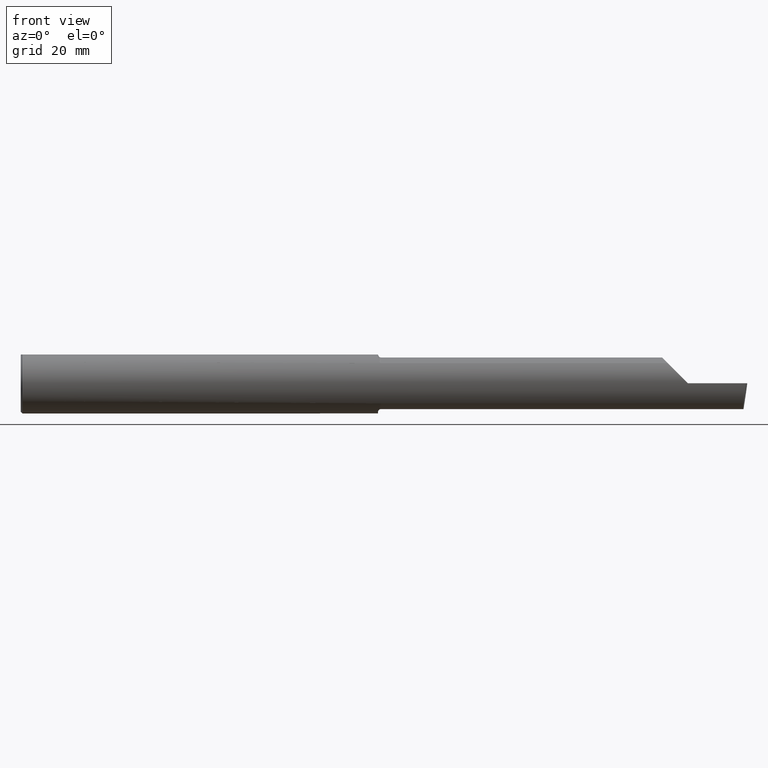
[diagram: clean part render]
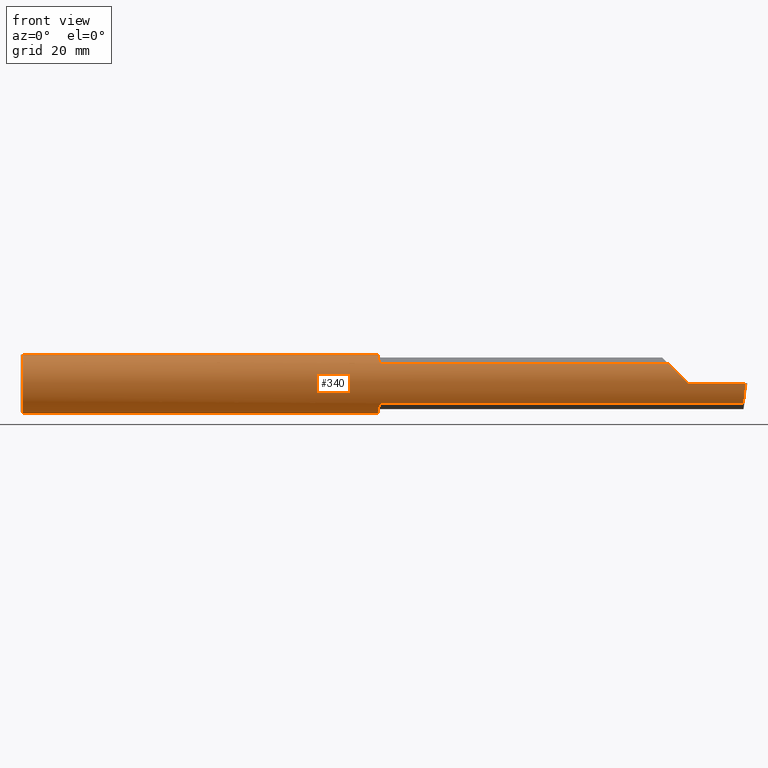
[diagram: same view with one face highlighted and labeled with its STEP entity id]
A machine part, front view. The second image highlights one B-rep face of the part: STEP entity #340.
In plain terms, the highlighted cylindrical surface (edge-blend (fillet) strip) has radius 6.3462 mm, axis along (-1, -0, -0).
Its self-contained STEP definition (entity closure, byte-faithful):
#7 = CIRCLE ( 'NONE', #148, 0.2498499999999999888 ) ;
#14 = VERTEX_POINT ( 'NONE', #48 ) ;
#23 = CARTESIAN_POINT ( 'NONE',  ( 4.678149108241350816E-32, -0.2498499999999999888, 4.235963549344508711E-16 ) ) ;
#43 = CARTESIAN_POINT ( 'NONE',  ( 2.949999999999990852, -0.1016924291521900947, -0.2293274111511736102 ) ) ;
#46 = ORIENTED_EDGE ( 'NONE', *, *, #327, .F. ) ;
#48 = CARTESIAN_POINT ( 'NONE',  ( 2.975000000000000533, -0.1868028301886801024, -0.1659208399614078011 ) ) ;
#49 = AXIS2_PLACEMENT_3D ( 'NONE', #90, #498, #616 ) ;
#51 = CARTESIAN_POINT ( 'NONE',  ( 5.390325100969867833, -0.2278791102234771215, 0.1196748990301337162 ) ) ;
#63 = CARTESIAN_POINT ( 'NONE',  ( 0.01499999999999999771, 0.0000000000000000000, 0.0000000000000000000 ) ) ;
#79 = VERTEX_POINT ( 'NONE', #454 ) ;
#80 = CARTESIAN_POINT ( 'NONE',  ( 2.975000000000000533, -0.1868028301886802411, 0.1659208399614077178 ) ) ;
#84 = CARTESIAN_POINT ( 'NONE',  ( 2.950000000000000622, 0.0000000000000000000, 0.0000000000000000000 ) ) ;
#90 = CARTESIAN_POINT ( 'NONE',  ( 2.950000000000000622, 0.0000000000000000000, 0.0000000000000000000 ) ) ;
#95 = CARTESIAN_POINT ( 'NONE',  ( 5.344079160038589293, -0.1868028301886780762, 0.1659208399614099383 ) ) ;
#108 = CARTESIAN_POINT ( 'NONE',  ( 2.965875558094659858, -0.1799506819598047369, -0.1733486322212172137 ) ) ;
#110 = EDGE_CURVE ( 'NONE', #614, #451, #271, .T. ) ;
#112 = LINE ( 'NONE', #628, #709 ) ;
#115 = CARTESIAN_POINT ( 'NONE',  ( 5.968492717492763333, -0.1868028301886794917, -0.1659208399614086338 ) ) ;
#120 = VERTEX_POINT ( 'NONE', #765 ) ;
#123 = ORIENTED_EDGE ( 'NONE', *, *, #414, .F. ) ;
#125 = ORIENTED_EDGE ( 'NONE', *, *, #204, .F. ) ;
#127 = CARTESIAN_POINT ( 'NONE',  ( 0.01499999999999999771, 0.0000000000000000000, -0.2498499999999999888 ) ) ;
#130 = CARTESIAN_POINT ( 'NONE',  ( 2.975000000000000533, -0.1868028301886802411, 0.1659208399614077178 ) ) ;
#131 = CARTESIAN_POINT ( 'NONE',  ( 2.957343635746628507, -0.1582230848692707248, 0.1936715022401941932 ) ) ;
#137 = CARTESIAN_POINT ( 'NONE',  ( 2.950000000000000622, -0.07650098038590467941, 0.2378500000000000059 ) ) ;
#138 = CARTESIAN_POINT ( 'NONE',  ( 2.955553274544309161, -0.1495649063853958793, 0.2004446339470375427 ) ) ;
#140 = CARTESIAN_POINT ( 'NONE',  ( 5.973097331270539989, -0.2278791102234774546, -0.1196748990301325505 ) ) ;
#146 = VECTOR ( 'NONE', #237, 39.37007874015748143 ) ;
#148 = AXIS2_PLACEMENT_3D ( 'NONE', #767, #411, #247 ) ;
#149 = AXIS2_PLACEMENT_3D ( 'NONE', #63, #476, #189 ) ;
#155 = DIRECTION ( 'NONE',  ( 0.0000000000000000000, 0.0000000000000000000, -1.000000000000000000 ) ) ;
#163 = EDGE_CURVE ( 'NONE', #415, #652, #466, .T. ) ;
#171 = CARTESIAN_POINT ( 'NONE',  ( 2.970138573936400128, -0.1849738682364337750, -0.1679602226613244043 ) ) ;
#186 = CARTESIAN_POINT ( 'NONE',  ( 2.969285582744839669, -0.1841881072713816569, -0.1688230283719342195 ) ) ;
#189 = DIRECTION ( 'NONE',  ( 0.0000000000000000000, 0.0000000000000000000, 1.000000000000000000 ) ) ;
#190 = CARTESIAN_POINT ( 'NONE',  ( 2.969290397284159777, -0.1841927918507058615, 0.1688179232533547902 ) ) ;
#191 = CARTESIAN_POINT ( 'NONE',  ( 0.01499999999999999771, 0.07650098038587500870, 0.2378499999999999226 ) ) ;
#196 = CARTESIAN_POINT ( 'NONE',  ( 2.962758562425230835, -0.1743135686468876011, 0.1790760091940033216 ) ) ;
#199 = VECTOR ( 'NONE', #212, 39.37007874015748143 ) ;
#200 = VERTEX_POINT ( 'NONE', #397 ) ;
#204 = EDGE_CURVE ( 'NONE', #430, #451, #7, .T. ) ;
#212 = DIRECTION ( 'NONE',  ( -1.000000000000000000, -0.0000000000000000000, -0.0000000000000000000 ) ) ;
#216 = ORIENTED_EDGE ( 'NONE', *, *, #337, .F. ) ;
#220 = AXIS2_PLACEMENT_3D ( 'NONE', #375, #318, #436 ) ;
#234 = DIRECTION ( 'NONE',  ( 1.000000000000000000, 0.0000000000000000000, 0.0000000000000000000 ) ) ;
#237 = DIRECTION ( 'NONE',  ( -1.000000000000000000, -0.0000000000000000000, -0.0000000000000000000 ) ) ;
#243 = CARTESIAN_POINT ( 'NONE',  ( 2.952700302592144332, -0.1312404656039937167, 0.2128935242986057796 ) ) ;
#245 = CARTESIAN_POINT ( 'NONE',  ( 2.950000000000000622, -0.08036415094339764698, -0.2365726648265745469 ) ) ;
#246 = CARTESIAN_POINT ( 'NONE',  ( 0.01499999999998188026, -0.07650098038590467941, 0.2378500000000000059 ) ) ;
#247 = DIRECTION ( 'NONE',  ( 0.0000000000000000000, 0.0000000000000000000, 1.000000000000000000 ) ) ;
#250 = CARTESIAN_POINT ( 'NONE',  ( 2.967016733372314530, -0.1817333077058777557, -0.1714754572696055857 ) ) ;
#255 = CARTESIAN_POINT ( 'NONE',  ( 2.973548866468136875, -0.1868028301907328492, 0.1659208399590970107 ) ) ;
#263 = DIRECTION ( 'NONE',  ( -1.000000000000000000, -0.0000000000000000000, -0.0000000000000000000 ) ) ;
#267 = EDGE_CURVE ( 'NONE', #695, #79, #609, .T. ) ;
#270 = ORIENTED_EDGE ( 'NONE', *, *, #163, .T. ) ;
#271 = LINE ( 'NONE', #296, #146 ) ;
#280 = ORIENTED_EDGE ( 'NONE', *, *, #346, .F. ) ;
#283 = CIRCLE ( 'NONE', #149, 0.2498499999999999888 ) ;
#284 = CARTESIAN_POINT ( 'NONE',  ( 2.973547768521294987, -0.1868028301886801579, -0.1659208399614078844 ) ) ;
#287 = VERTEX_POINT ( 'NONE', #480 ) ;
#291 = CARTESIAN_POINT ( 'NONE',  ( 5.510000000000000675, -0.2498499999999999888, -1.849216666712503932E-16 ) ) ;
#296 = CARTESIAN_POINT ( 'NONE',  ( 0.0000000000000000000, -0.07650098038587496707, 0.2378499999999999226 ) ) ;
#299 = CARTESIAN_POINT ( 'NONE',  ( 2.961285743882608124, -0.1704402150608125832, -0.1827701868778688066 ) ) ;
#300 = CARTESIAN_POINT ( 'NONE',  ( 2.951680550596498698, -0.1214972057705740599, 0.2186080375779515528 ) ) ;
#308 = ORIENTED_EDGE ( 'NONE', *, *, #267, .T. ) ;
#311 = CARTESIAN_POINT ( 'NONE',  ( 2.970144309637440916, -0.1849788583324340763, 0.1679547276881058482 ) ) ;
#314 = ORIENTED_EDGE ( 'NONE', *, *, #694, .T. ) ;
#315 = B_SPLINE_CURVE_WITH_KNOTS ( 'NONE', 3,
 ( #439, #284, #354, #171, #186, #250, #108, #650, #299, #646, #590, #766, #43, #245 ),
 .UNSPECIFIED., .F., .F.,
 ( 4, 2, 2, 2, 2, 2, 4 ),
 ( 1.967619685358722855E-07, 0.0001090840123077841469, 0.0002179712626470324229, 0.0004357457633255543725, 0.0008712947646826149683, 0.001742392767396734642, 0.003484588772824973122 ),
 .UNSPECIFIED. ) ;
#318 = DIRECTION ( 'NONE',  ( -1.000000000000000000, -0.0000000000000000000, -0.0000000000000000000 ) ) ;
#327 = EDGE_CURVE ( 'NONE', #120, #79, #747, .T. ) ;
#329 = ORIENTED_EDGE ( 'NONE', *, *, #737, .F. ) ;
#337 = EDGE_CURVE ( 'NONE', #614, #200, #420, .T. ) ;
#340 = ADVANCED_FACE ( 'NONE', ( #573 ), #557, .T. ) ;
#346 = EDGE_CURVE ( 'NONE', #200, #392, #432, .T. ) ;
#352 = CARTESIAN_POINT ( 'NONE',  ( 5.987221270274238449, -0.2498499999999999888, -2.376254313274097985E-16 ) ) ;
#354 = CARTESIAN_POINT ( 'NONE',  ( 2.972232603162240139, -0.1862758070845882408, -0.1665151405181416744 ) ) ;
#357 =( BOUNDED_CURVE ( )  B_SPLINE_CURVE ( 3, ( #691, #140, #486, #352 ),
 .UNSPECIFIED., .F., .F. ) 
 B_SPLINE_CURVE_WITH_KNOTS ( ( 4, 4 ),
 ( 0.6344818218798808918, 1.360746882514761280 ),
 .UNSPECIFIED. ) 
 CURVE ( )  GEOMETRIC_REPRESENTATION_ITEM ( )  RATIONAL_B_SPLINE_CURVE ( ( 1.000000000000000000, 0.9565258159410998662, 0.9565258159410998662, 1.000000000000000000 ) ) 
 REPRESENTATION_ITEM ( '' )  );
#375 = CARTESIAN_POINT ( 'NONE',  ( 0.0000000000000000000, 0.0000000000000000000, 0.0000000000000000000 ) ) ;
#377 = CARTESIAN_POINT ( 'NONE',  ( 2.950000000000000622, -0.08036415094339764698, 0.2365726648265745469 ) ) ;
#392 = VERTEX_POINT ( 'NONE', #130 ) ;
#397 = CARTESIAN_POINT ( 'NONE',  ( 2.950000000000000622, -0.08036415094339764698, 0.2365726648265745469 ) ) ;
#411 = DIRECTION ( 'NONE',  ( -1.000000000000000000, -0.0000000000000000000, -0.0000000000000000000 ) ) ;
#414 = EDGE_CURVE ( 'NONE', #695, #430, #283, .T. ) ;
#415 = VERTEX_POINT ( 'NONE', #619 ) ;
#420 = CIRCLE ( 'NONE', #49, 0.2498499999999999888 ) ;
#430 = VERTEX_POINT ( 'NONE', #127 ) ;
#432 = B_SPLINE_CURVE_WITH_KNOTS ( 'NONE', 3,
 ( #377, #731, #648, #300, #243, #138, #131, #539, #196, #592, #536, #190, #311, #603, #255, #80 ),
 .UNSPECIFIED., .F., .F.,
 ( 4, 2, 2, 2, 2, 2, 2, 4 ),
 ( 0.0001034694911878423069, 0.0009591263138367670449, 0.001814783136485691823, 0.002670439959134616494, 0.003098268370459083924, 0.003312182576121317640, 0.003419139678952433630, 0.003526096781783549620 ),
 .UNSPECIFIED. ) ;
#436 = DIRECTION ( 'NONE',  ( 0.0000000000000000000, 0.0000000000000000000, 1.000000000000000000 ) ) ;
#439 = CARTESIAN_POINT ( 'NONE',  ( 2.975000000000000533, -0.1868028301886801024, -0.1659208399614078011 ) ) ;
#451 = VERTEX_POINT ( 'NONE', #246 ) ;
#454 = CARTESIAN_POINT ( 'NONE',  ( 2.950000000000000622, 0.07650098038587503646, 0.2378500000000000059 ) ) ;
#455 = EDGE_CURVE ( 'NONE', #697, #14, #521, .T. ) ;
#466 =( BOUNDED_CURVE ( )  B_SPLINE_CURVE ( 3, ( #291, #583, #51, #637 ),
 .UNSPECIFIED., .F., .F. ) 
 B_SPLINE_CURVE_WITH_KNOTS ( ( 4, 4 ),
 ( 4.712388980384689674, 5.438654041019578500 ),
 .UNSPECIFIED. ) 
 CURVE ( )  GEOMETRIC_REPRESENTATION_ITEM ( )  RATIONAL_B_SPLINE_CURVE ( ( 1.000000000000000000, 0.9565258159410988670, 0.9565258159410988670, 1.000000000000000000 ) ) 
 REPRESENTATION_ITEM ( '' )  );
#476 = DIRECTION ( 'NONE',  ( -1.000000000000000000, -0.0000000000000000000, -0.0000000000000000000 ) ) ;
#480 = CARTESIAN_POINT ( 'NONE',  ( 5.987221270274238449, -0.2498499999999999888, -2.376254313274097985E-16 ) ) ;
#486 = CARTESIAN_POINT ( 'NONE',  ( 5.979623920331825992, -0.2498499999999999610, -0.06185424669427504185 ) ) ;
#495 = DIRECTION ( 'NONE',  ( 1.000000000000000000, 0.0000000000000000000, 0.0000000000000000000 ) ) ;
#498 = DIRECTION ( 'NONE',  ( 1.000000000000000000, 0.0000000000000000000, 0.0000000000000000000 ) ) ;
#499 = VECTOR ( 'NONE', #545, 39.37007874015748143 ) ;
#501 = EDGE_CURVE ( 'NONE', #287, #415, #658, .T. ) ;
#512 = ORIENTED_EDGE ( 'NONE', *, *, #110, .T. ) ;
#521 = LINE ( 'NONE', #548, #540 ) ;
#536 = CARTESIAN_POINT ( 'NONE',  ( 2.967018584423772420, -0.1817363555988624757, 0.1714722504633794387 ) ) ;
#539 = CARTESIAN_POINT ( 'NONE',  ( 2.961268146151109892, -0.1703904609315289309, 0.1828159088808236632 ) ) ;
#540 = VECTOR ( 'NONE', #263, 39.37007874015748143 ) ;
#545 = DIRECTION ( 'NONE',  ( 1.000000000000000000, 0.0000000000000000000, 0.0000000000000000000 ) ) ;
#548 = CARTESIAN_POINT ( 'NONE',  ( 4.259999999999999787, -0.1868028301886794917, -0.1659208399614086338 ) ) ;
#557 = CYLINDRICAL_SURFACE ( 'NONE', #220, 0.2498499999999999888 ) ;
#561 = AXIS2_PLACEMENT_3D ( 'NONE', #84, #495, #155 ) ;
#573 = FACE_OUTER_BOUND ( 'NONE', #585, .T. ) ;
#579 = ORIENTED_EDGE ( 'NONE', *, *, #455, .F. ) ;
#583 = CARTESIAN_POINT ( 'NONE',  ( 5.448145753305725592, -0.2498500000000000443, 0.06185424669427554839 ) ) ;
#585 = EDGE_LOOP ( 'NONE', ( #579, #314, #606, #270, #755, #280, #216, #512, #125, #123, #308, #46, #329 ) ) ;
#590 = CARTESIAN_POINT ( 'NONE',  ( 2.955537042546467319, -0.1495003888704995454, -0.2004994225712667943 ) ) ;
#592 = CARTESIAN_POINT ( 'NONE',  ( 2.965857071685140234, -0.1799228808997987705, 0.1733778622677439318 ) ) ;
#603 = CARTESIAN_POINT ( 'NONE',  ( 2.972243150415552648, -0.1862809296394755398, 0.1665094106511980088 ) ) ;
#606 = ORIENTED_EDGE ( 'NONE', *, *, #501, .T. ) ;
#609 = LINE ( 'NONE', #722, #499 ) ;
#614 = VERTEX_POINT ( 'NONE', #137 ) ;
#616 = DIRECTION ( 'NONE',  ( 0.0000000000000000000, 0.0000000000000000000, -1.000000000000000000 ) ) ;
#619 = CARTESIAN_POINT ( 'NONE',  ( 5.510000000000000675, -0.2498499999999999888, -1.849216666712503932E-16 ) ) ;
#628 = CARTESIAN_POINT ( 'NONE',  ( 4.259999999999999787, -0.1868028301886794917, 0.1659208399614086338 ) ) ;
#637 = CARTESIAN_POINT ( 'NONE',  ( 5.344079160038589293, -0.1868028301886780762, 0.1659208399614099383 ) ) ;
#646 = CARTESIAN_POINT ( 'NONE',  ( 2.957341173198634543, -0.1582250006961567756, -0.1936724403215119017 ) ) ;
#648 = CARTESIAN_POINT ( 'NONE',  ( 2.950332084145230294, -0.1014027185340457687, 0.2286231260779307828 ) ) ;
#650 = CARTESIAN_POINT ( 'NONE',  ( 2.962797058507745440, -0.1743943839926595518, -0.1789958554125689882 ) ) ;
#652 = VERTEX_POINT ( 'NONE', #95 ) ;
#658 = LINE ( 'NONE', #23, #199 ) ;
#691 = CARTESIAN_POINT ( 'NONE',  ( 5.968492717492763333, -0.1868028301886794917, -0.1659208399614086338 ) ) ;
#694 = EDGE_CURVE ( 'NONE', #697, #287, #357, .T. ) ;
#695 = VERTEX_POINT ( 'NONE', #191 ) ;
#697 = VERTEX_POINT ( 'NONE', #115 ) ;
#709 = VECTOR ( 'NONE', #234, 39.37007874015748143 ) ;
#722 = CARTESIAN_POINT ( 'NONE',  ( 0.0000000000000000000, 0.07650098038587500870, 0.2378499999999999226 ) ) ;
#731 = CARTESIAN_POINT ( 'NONE',  ( 2.950000000000001066, -0.09104204635388289668, 0.2329453649474651500 ) ) ;
#737 = EDGE_CURVE ( 'NONE', #14, #120, #315, .T. ) ;
#747 = CIRCLE ( 'NONE', #561, 0.2498499999999999888 ) ;
#755 = ORIENTED_EDGE ( 'NONE', *, *, #768, .F. ) ;
#765 = CARTESIAN_POINT ( 'NONE',  ( 2.950000000000000622, -0.08036415094339764698, -0.2365726648265745469 ) ) ;
#766 = CARTESIAN_POINT ( 'NONE',  ( 2.951227564404963033, -0.1217005943024301318, -0.2193523119135133981 ) ) ;
#767 = CARTESIAN_POINT ( 'NONE',  ( 0.01499999999999999771, 0.0000000000000000000, 0.0000000000000000000 ) ) ;
#768 = EDGE_CURVE ( 'NONE', #392, #652, #112, .T. ) ;